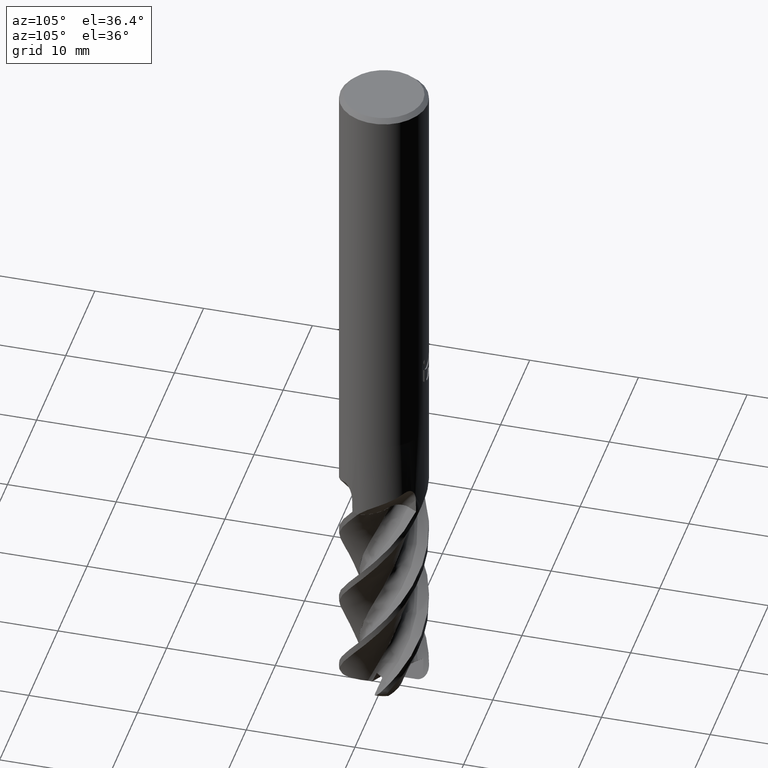
[diagram: clean part render]
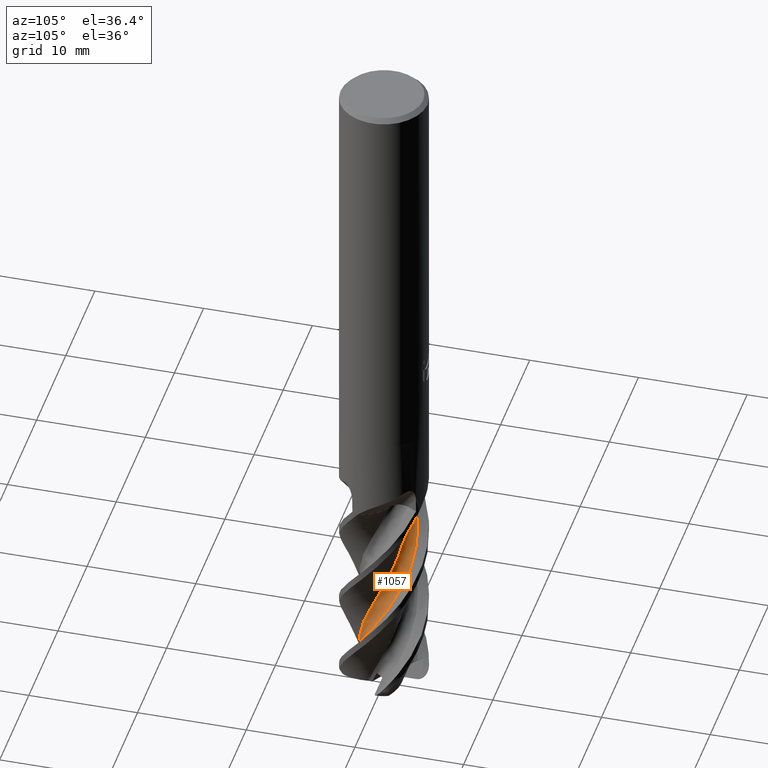
[diagram: same view with one face highlighted and labeled with its STEP entity id]
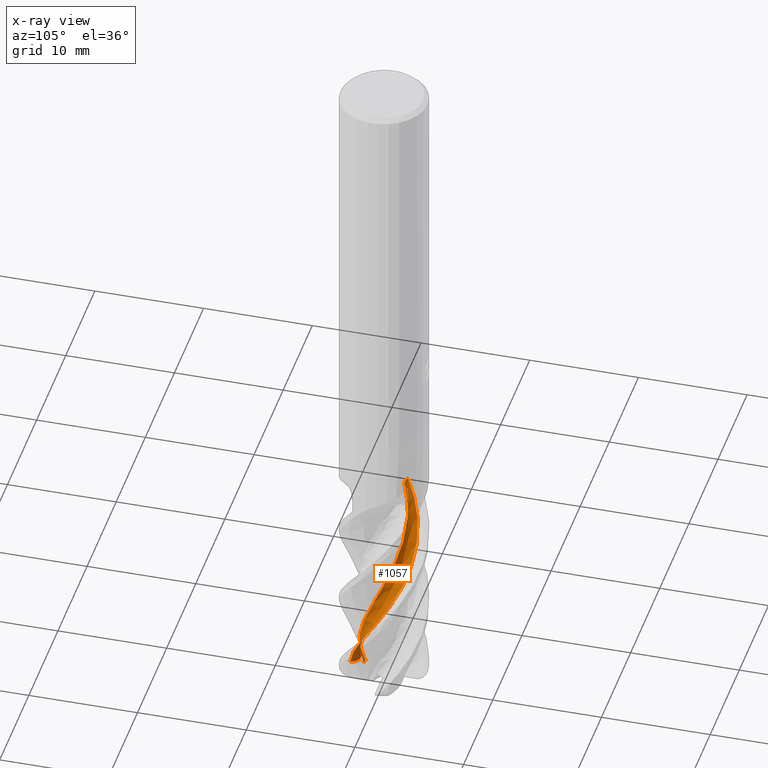
[diagram: x-ray of the same camera — body ghosted, the highlighted face saturated]
A machine part, auxiliary view. The second image highlights one B-rep face of the part: STEP entity #1057.
The next image is the same camera in x-ray: the body ghosted, the highlighted face saturated — about 0% of this face is hidden behind the body in this view.
In plain terms, the highlighted face is a freeform B-spline surface patch.
Its self-contained STEP definition (entity closure, byte-faithful):
#579=EDGE_CURVE('',#1109,#1033,#1619,.T.);
#607=VERTEX_POINT('',#1650);
#649=EDGE_CURVE('',#791,#1521,#1694,.T.);
#673=EDGE_CURVE('',#607,#1521,#1720,.T.);
#743=VERTEX_POINT('',#1797);
#791=VERTEX_POINT('',#1847);
#793=EDGE_CURVE('',#1109,#743,#1849,.T.);
#1023=EDGE_CURVE('',#743,#791,#2100,.T.);
#1033=VERTEX_POINT('',#2110);
#1057=ADVANCED_FACE('',(#2134),#2135,.T.);
#1109=VERTEX_POINT('',#2189);
#1297=EDGE_CURVE('',#607,#1033,#2403,.T.);
#1521=VERTEX_POINT('',#2646);
#1619=B_SPLINE_CURVE_WITH_KNOTS('',3,(#2838,#2839,#2840,#2841,#2842,#2843,#2844,#2845,#2846,#2847,#2848,#2849,#2850,#2851,#2852,#2853,#2854,#2855,#2856,#2857,#2858,#2859,#2860,#2861,#2862,#2863,#2864,#2865,#2866,#2867,#2868,#2869,#2870,#2871,#2872,#2873,#2874,#2875,#2876,#2877,#2878,#2879,#2880,#2881,#2882,#2883,#2884,#2885,#2886,#2887,#2888,#2889,#2890),.UNSPECIFIED.,.F.,.F.,(4,1,2,1,2,1,2,1,2,1,2,1,2,1,2,1,2,1,2,1,2,1,2,1,2,1,2,1,2,1,2,1,2,1,4),(0.0,0.564470682996319,1.12894136599264,1.69341204898896,2.25788273198528,3.38682409797792,4.51576546397055,5.64470682996319,6.77364819595583,7.90258956194847,9.03153092794111,10.1604722939337,11.2894136599264,12.418355025919,13.5472963919117,14.6762377579043,15.8051791238969,16.9341204898896,18.0630618558822,19.1920032218749,20.3209445878675,21.4498859538601,22.5788273198528,23.7077686858454,24.836710051838,25.9656514178307,27.0945927838233,28.223534149816,29.3524755158086,30.4814168818012,31.6103582477939,32.7392996137865,33.8682409797792,34.9971823457718,36.1261237117644),.UNSPECIFIED.);
#1650=CARTESIAN_POINT('',(-1.0589478404697,1.91326685878892,-44.0));
#1694=B_SPLINE_CURVE_WITH_KNOTS('',3,(#3112,#3113,#3114,#3115,#3116,#3117),.UNSPECIFIED.,.F.,.F.,(4,2,4),(0.0,0.437546709257603,0.855117557467047),.UNSPECIFIED.);
#1720=B_SPLINE_CURVE_WITH_KNOTS('',3,(#3187,#3188,#3189,#3190,#3191,#3192,#3193,#3194,#3195,#3196,#3197,#3198,#3199,#3200,#3201,#3202,#3203,#3204,#3205,#3206,#3207,#3208,#3209,#3210,#3211,#3212,#3213,#3214,#3215,#3216,#3217,#3218,#3219,#3220,#3221,#3222,#3223,#3224,#3225,#3226,#3227,#3228,#3229,#3230),.UNSPECIFIED.,.F.,.F.,(4,2,2,2,2,2,2,2,2,2,2,2,2,2,2,2,2,2,2,2,2,4),(0.0,1.09065750348526,1.16272854213342,3.30922259516204,3.5458628293968,5.68573179184916,5.82345131328246,7.88504758178701,8.01923989394566,10.0505077120194,10.2993625816689,11.6482152092207,12.7404102492723,14.2803593752693,14.5632393943545,16.028332744762,17.145102579144,17.9681777211153,18.5008184484494,18.744112255014,18.9577934838054,20.4277645305094),.UNSPECIFIED.);
#1797=CARTESIAN_POINT('',(-0.102892390691143,-2.07861533185208,-62.4418525692631));
#1847=CARTESIAN_POINT('',(-0.562098899506169,-2.00387310720187,-63.5258348171361));
#1849=B_SPLINE_CURVE_WITH_KNOTS('',3,(#4141,#4142,#4143,#4144,#4145,#4146,#4147,#4148,#4149,#4150,#4151,#4152),.UNSPECIFIED.,.F.,.F.,(4,2,2,2,2,4),(0.0,0.59279288955232,1.01802223723573,1.34997433243246,1.63469821265986,1.93631709778594),.UNSPECIFIED.);
#2100=B_SPLINE_CURVE_WITH_KNOTS('',3,(#6135,#6136,#6137,#6138,#6139,#6140,#6141,#6142,#6143,#6144,#6145,#6146),.UNSPECIFIED.,.F.,.F.,(4,2,2,2,2,4),(0.0,1.0137031243833,1.94022574832799,2.78597700295219,3.6046401147469,4.72783023559878),.UNSPECIFIED.);
#2110=CARTESIAN_POINT('',(-2.61301392435057,1.49564121686378,-44.0));
#2134=FACE_OUTER_BOUND('',#6223,.T.);
#2135=B_SPLINE_SURFACE_WITH_KNOTS('',3,3,((#6224,#6225,#6226,#6227,#6228,#6229,#6230,#6231,#6232,#6233,#6234,#6235,#6236,#6237,#6238,#6239,#6240,#6241,#6242,#6243,#6244,#6245,#6246,#6247,#6248,#6249,#6250,#6251,#6252,#6253,#6254,#6255,#6256,#6257,#6258,#6259,#6260,#6261,#6262,#6263,#6264,#6265,#6266,#6267,#6268,#6269,#6270,#6271,#6272,#6273,#6274,#6275,#6276),(#6277,#6278,#6279,#6280,#6281,#6282,#6283,#6284,#6285,#6286,#6287,#6288,#6289,#6290,#6291,#6292,#6293,#6294,#6295,#6296,#6297,#6298,#6299,#6300,#6301,#6302,#6303,#6304,#6305,#6306,#6307,#6308,#6309,#6310,#6311,#6312,#6313,#6314,#6315,#6316,#6317,#6318,#6319,#6320,#6321,#6322,#6323,#6324,#6325,#6326,#6327,#6328,#6329),(#6330,#6331,#6332,#6333,#6334,#6335,#6336,#6337,#6338,#6339,#6340,#6341,#6342,#6343,#6344,#6345,#6346,#6347,#6348,#6349,#6350,#6351,#6352,#6353,#6354,#6355,#6356,#6357,#6358,#6359,#6360,#6361,#6362,#6363,#6364,#6365,#6366,#6367,#6368,#6369,#6370,#6371,#6372,#6373,#6374,#6375,#6376,#6377,#6378,#6379,#6380,#6381,#6382),(#6383,#6384,#6385,#6386,#6387,#6388,#6389,#6390,#6391,#6392,#6393,#6394,#6395,#6396,#6397,#6398,#6399,#6400,#6401,#6402,#6403,#6404,#6405,#6406,#6407,#6408,#6409,#6410,#6411,#6412,#6413,#6414,#6415,#6416,#6417,#6418,#6419,#6420,#6421,#6422,#6423,#6424,#6425,#6426,#6427,#6428,#6429,#6430,#6431,#6432,#6433,#6434,#6435),(#6436,#6437,#6438,#6439,#6440,#6441,#6442,#6443,#6444,#6445,#6446,#6447,#6448,#6449,#6450,#6451,#6452,#6453,#6454,#6455,#6456,#6457,#6458,#6459,#6460,#6461,#6462,#6463,#6464,#6465,#6466,#6467,#6468,#6469,#6470,#6471,#6472,#6473,#6474,#6475,#6476,#6477,#6478,#6479,#6480,#6481,#6482,#6483,#6484,#6485,#6486,#6487,#6488),(#6489,#6490,#6491,#6492,#6493,#6494,#6495,#6496,#6497,#6498,#6499,#6500,#6501,#6502,#6503,#6504,#6505,#6506,#6507,#6508,#6509,#6510,#6511,#6512,#6513,#6514,#6515,#6516,#6517,#6518,#6519,#6520,#6521,#6522,#6523,#6524,#6525,#6526,#6527,#6528,#6529,#6530,#6531,#6532,#6533,#6534,#6535,#6536,#6537,#6538,#6539,#6540,#6541),(#6542,#6543,#6544,#6545,#6546,#6547,#6548,#6549,#6550,#6551,#6552,#6553,#6554,#6555,#6556,#6557,#6558,#6559,#6560,#6561,#6562,#6563,#6564,#6565,#6566,#6567,#6568,#6569,#6570,#6571,#6572,#6573,#6574,#6575,#6576,#6577,#6578,#6579,#6580,#6581,#6582,#6583,#6584,#6585,#6586,#6587,#6588,#6589,#6590,#6591,#6592,#6593,#6594)),.UNSPECIFIED.,.F.,.F.,.F.,(4,1,1,1,4),(4,1,2,1,2,1,2,1,2,1,2,1,2,1,2,1,2,1,2,1,2,1,2,1,2,1,2,1,2,1,2,1,2,1,4),(3.86164530321994E-016,0.392699081655247,0.785398163310493,1.17809724496574,1.57079632662099),(0.0,0.564470682996319,1.12894136599264,1.69341204898896,2.25788273198528,3.38682409797792,4.51576546397055,5.64470682996319,6.77364819595583,7.90258956194847,9.03153092794111,10.1604722939337,11.2894136599264,12.418355025919,13.5472963919117,14.6762377579043,15.8051791238969,16.9341204898896,18.0630618558822,19.1920032218749,20.3209445878675,21.4498859538601,22.5788273198528,23.7077686858454,24.836710051838,25.9656514178307,27.0945927838233,28.223534149816,29.3524755158086,30.4814168818012,31.6103582477939,32.7392996137865,33.8682409797792,34.9971823457718,36.1261237117644),.UNSPECIFIED.);
#2189=CARTESIAN_POINT('',(0.87639897342754,-2.88035096255756,-62.5811954262058));
#2403=B_SPLINE_CURVE_WITH_KNOTS('',3,(#8511,#8512,#8513,#8514,#8515,#8516,#8517,#8518,#8519,#8520),.UNSPECIFIED.,.F.,.F.,(4,2,2,2,4),(0.0,0.449312264804202,0.898616665085287,1.3478876222849,1.79650165292875),.UNSPECIFIED.);
#2646=CARTESIAN_POINT('',(-0.956388948085553,-1.96667088766999,-63.5379225510015));
#2838=CARTESIAN_POINT('',(-3.00677203606764,0.139362559970866,-72.0));
#2839=CARTESIAN_POINT('',(-3.00774969477143,0.137591686624967,-71.8125082595747));
#2840=CARTESIAN_POINT('',(-3.01441433494852,0.0600543438687208,-71.4374591624002));
#2841=CARTESIAN_POINT('',(-3.01061532222955,-0.171607700085384,-71.0623911956232));
#2842=CARTESIAN_POINT('',(-2.97647397913281,-0.47628938617783,-70.6874423173603));
#2843=CARTESIAN_POINT('',(-2.92282848590813,-0.754067282596545,-70.3125146345509));
#2844=CARTESIAN_POINT('',(-2.84756256579909,-0.983283104512657,-69.9375423205399));
#2845=CARTESIAN_POINT('',(-2.72581288907504,-1.29858759576882,-69.3750028006817));
#2846=CARTESIAN_POINT('',(-2.51736149798706,-1.69929144152949,-68.624949962598));
#2847=CARTESIAN_POINT('',(-2.20979311263245,-2.05974680242893,-67.874919047866));
#2848=CARTESIAN_POINT('',(-1.84676941797744,-2.39034067304375,-67.1249515254754));
#2849=CARTESIAN_POINT('',(-1.45876887986611,-2.6645478128411,-66.3749923887698));
#2850=CARTESIAN_POINT('',(-1.02262727707591,-2.84205168758233,-65.6249831733259));
#2851=CARTESIAN_POINT('',(-0.556457428820898,-2.96866560096543,-64.8749710741685));
#2852=CARTESIAN_POINT('',(-0.0896044363825028,-3.03643934645835,-64.1249749237994));
#2853=CARTESIAN_POINT('',(0.380796477758881,-2.99637072434763,-63.3749614765675));
#2854=CARTESIAN_POINT('',(0.854244927620434,-2.89707269477737,-62.624964438419));
#2855=CARTESIAN_POINT('',(1.30066399316098,-2.74516440351388,-61.8749788883283));
#2856=CARTESIAN_POINT('',(1.70115865604854,-2.49587598860677,-61.1249657028013));
#2857=CARTESIAN_POINT('',(2.07794287669122,-2.19202455294531,-60.3749646718826));
#2858=CARTESIAN_POINT('',(2.40673291691619,-1.85349343938976,-59.6249767812222));
#2859=CARTESIAN_POINT('',(2.65006574239382,-1.44928267200602,-58.8749638295968));
#2860=CARTESIAN_POINT('',(2.84738920080401,-1.00754765934755,-58.1249636008392));
#2861=CARTESIAN_POINT('',(2.98627089438864,-0.556723585036126,-57.3749760013815));
#2862=CARTESIAN_POINT('',(3.01925370039235,-0.0860681690051008,-56.6249628871072));
#2863=CARTESIAN_POINT('',(2.99416580572525,0.397198679317561,-55.8749625969308));
#2864=CARTESIAN_POINT('',(2.91286947324332,0.861951866435291,-55.1249750587671));
#2865=CARTESIAN_POINT('',(2.72824452373256,1.29613710633168,-54.3749619960785));
#2866=CARTESIAN_POINT('',(2.48618642975126,1.71512919239107,-53.6249616400313));
#2867=CARTESIAN_POINT('',(2.20248501471941,2.0920853978149,-52.8749740629167));
#2868=CARTESIAN_POINT('',(1.84065663274366,2.39484273687551,-52.124961038494));
#2869=CARTESIAN_POINT('',(1.43459136619598,2.65795697902784,-51.3749607503364));
#2870=CARTESIAN_POINT('',(1.01053593405324,2.86471403574204,-50.6249731383908));
#2871=CARTESIAN_POINT('',(0.550574624127416,2.96987629804413,-49.8749600205708));
#2872=CARTESIAN_POINT('',(0.0692067828817185,3.0196036450903,-49.1249596981876));
#2873=CARTESIAN_POINT('',(-0.402523223658641,3.01093589661149,-48.3749721770522));
#2874=CARTESIAN_POINT('',(-0.859950191814616,2.89547384263325,-47.6249591458725));
#2875=CARTESIAN_POINT('',(-1.31121108144683,2.72093917606784,-46.8749587794507));
#2876=CARTESIAN_POINT('',(-1.72739774133227,2.49877412627835,-46.1249711597046));
#2877=CARTESIAN_POINT('',(-2.08236869740685,2.18793024471843,-45.3749582021516));
#2878=CARTESIAN_POINT('',(-2.40499132920278,1.82724204084278,-44.6249581061917));
#2879=CARTESIAN_POINT('',(-2.67465440957888,1.44012857761571,-43.8749704703395));
#2880=CARTESIAN_POINT('',(-2.84946637563302,1.00191877655943,-43.1249567892993));
#2881=CARTESIAN_POINT('',(-2.97282076010391,0.533981199357519,-42.3749556801833));
#2882=CARTESIAN_POINT('',(-3.0369952649953,0.0665029707277234,-41.6249686192193));
#2883=CARTESIAN_POINT('',(-2.99344661982813,-0.403082595917741,-40.8749577711076));
#2884=CARTESIAN_POINT('',(-2.89072308043096,-0.875446373624069,-40.1249596964065));
#2885=CARTESIAN_POINT('',(-2.73560031078932,-1.32081121117291,-39.3749697431896));
#2886=CARTESIAN_POINT('',(-2.48251052525601,-1.72072857361434,-38.6249508035516));
#2887=CARTESIAN_POINT('',(-2.17406025606992,-2.09686134508152,-37.87494675259));
#2888=CARTESIAN_POINT('',(-1.83247644184762,-2.42237467324165,-37.1249683855231));
#2889=CARTESIAN_POINT('',(-1.43241934825352,-2.65887351166689,-36.3749707445256));
#2890=CARTESIAN_POINT('',(-1.21579401568708,-2.75440643687684,-35.9999741297015));
#3112=CARTESIAN_POINT('',(-0.160772001908427,-2.18284568967491,-63.467683100005));
#3113=CARTESIAN_POINT('',(-0.281818720642911,-2.10546688510757,-63.4928249976798));
#3114=CARTESIAN_POINT('',(-0.414647692797881,-2.0440852711256,-63.5127690930467));
#3115=CARTESIAN_POINT('',(-0.688042693760329,-1.96948085008728,-63.5370095388681));
#3116=CARTESIAN_POINT('',(-0.827238938812816,-1.95445219929354,-63.5418926435212));
#3117=CARTESIAN_POINT('',(-0.965083277507148,-1.96745355359445,-63.5376682474312));
#3187=CARTESIAN_POINT('',(-1.05894800815942,1.91326676616172,-43.9999995780196));
#3188=CARTESIAN_POINT('',(-0.927398356969975,1.98593118436131,-44.3310358187858));
#3189=CARTESIAN_POINT('',(-0.787060778514073,2.04572547908128,-44.6642002760684));
#3190=CARTESIAN_POINT('',(-0.629875406243276,2.09404906919753,-45.0154276834707));
#3191=CARTESIAN_POINT('',(-0.620003213949589,2.09701196496892,-45.0374493329349));
#3192=CARTESIAN_POINT('',(-0.302132072596894,2.18975994393198,-45.7466007884963));
#3193=CARTESIAN_POINT('',(0.0190551194935727,2.20935996187752,-46.4572163211512));
#3194=CARTESIAN_POINT('',(0.368700626734486,2.15564783192668,-47.2169242707717));
#3195=CARTESIAN_POINT('',(0.40315999836468,2.14953609241468,-47.2914231031089));
#3196=CARTESIAN_POINT('',(0.753281151452618,2.0783948773956,-48.0588518536113));
#3197=CARTESIAN_POINT('',(1.04872826216445,1.94514723371506,-48.7747455876045));
#3198=CARTESIAN_POINT('',(1.32373763825414,1.74062943625669,-49.5079147982847));
#3199=CARTESIAN_POINT('',(1.34002169658593,1.7281744869915,-49.5516452090107));
#3200=CARTESIAN_POINT('',(1.60898591823878,1.51591607687378,-50.2867739949448));
#3201=CARTESIAN_POINT('',(1.81210298401168,1.26452137929621,-51.0006202470246));
#3202=CARTESIAN_POINT('',(1.96518699603821,0.959197603795531,-51.7323854306801));
#3203=CARTESIAN_POINT('',(1.97426347393851,0.940457994291448,-51.7767653529917));
#3204=CARTESIAN_POINT('',(2.11868757083125,0.630619922139913,-52.5093904066219));
#3205=CARTESIAN_POINT('',(2.18687264851782,0.315617057185351,-53.2212214235478));
#3206=CARTESIAN_POINT('',(2.18660976825171,-0.042879562943246,-53.9904818643296));
#3207=CARTESIAN_POINT('',(2.18559795688315,-0.0813777873992399,-54.0724600101303));
#3208=CARTESIAN_POINT('',(2.17161910061791,-0.338065921514429,-54.6256531551824));
#3209=CARTESIAN_POINT('',(2.12739117328549,-0.549347944447972,-55.1009099809436));
#3210=CARTESIAN_POINT('',(1.99482689051371,-0.911803891889921,-55.9471670661455));
#3211=CARTESIAN_POINT('',(1.91668658961275,-1.06716589708812,-56.3134358857601));
#3212=CARTESIAN_POINT('',(1.68409900659559,-1.41673984074917,-57.2273884274984));
#3213=CARTESIAN_POINT('',(1.51410307318782,-1.59666983716616,-57.773791915904));
#3214=CARTESIAN_POINT('',(1.28042041124295,-1.77311795086871,-58.4052443524577));
#3215=CARTESIAN_POINT('',(1.24402597630655,-1.7989087100128,-58.5002421312138));
#3216=CARTESIAN_POINT('',(1.01260032945689,-1.95243253792045,-59.0962048893736));
#3217=CARTESIAN_POINT('',(0.801532528411305,-2.04736156006883,-59.6056574711117));
#3218=CARTESIAN_POINT('',(0.413613234361267,-2.15408914645834,-60.4869348281682));
#3219=CARTESIAN_POINT('',(0.240309994754511,-2.18071636258984,-60.8556051314117));
#3220=CARTESIAN_POINT('',(-0.06508959669755,-2.18983062692526,-61.5217076658549));
#3221=CARTESIAN_POINT('',(-0.194076143443223,-2.18201435021444,-61.8063080088233));
#3222=CARTESIAN_POINT('',(-0.403438311344061,-2.15073440262116,-62.2724172590761));
#3223=CARTESIAN_POINT('',(-0.485366312252755,-2.13369741527397,-62.4558510559936));
#3224=CARTESIAN_POINT('',(-0.603699754831308,-2.10193692122474,-62.7220265197143));
#3225=CARTESIAN_POINT('',(-0.640705776601539,-2.09097129336718,-62.8054464193703));
#3226=CARTESIAN_POINT('',(-0.709960998810091,-2.06846400767226,-62.9619022308218));
#3227=CARTESIAN_POINT('',(-0.741871924378912,-2.05729622618453,-63.0338977959123));
#3228=CARTESIAN_POINT('',(-0.995115178744132,-1.96180084568582,-63.6150194914645));
#3229=CARTESIAN_POINT('',(-1.19844003365927,-1.84377938006882,-64.1322997991804));
#3230=CARTESIAN_POINT('',(-1.37844698052743,-1.69744157972605,-64.6402267638566));
#4141=CARTESIAN_POINT('',(0.876398973423365,-2.88035096255639,-62.5811954262137));
#4142=CARTESIAN_POINT('',(0.787517803448362,-2.7126861785214,-62.6362724735295));
#4143=CARTESIAN_POINT('',(0.678206164543847,-2.55822980648186,-62.6670798099592));
#4144=CARTESIAN_POINT('',(0.467845698096282,-2.33790195100292,-62.6714796765284));
#4145=CARTESIAN_POINT('',(0.369501060831689,-2.25551345654742,-62.6588241842224));
#4146=CARTESIAN_POINT('',(0.181353958299473,-2.1445619386424,-62.6013072176765));
#4147=CARTESIAN_POINT('',(0.0965825891215242,-2.10949751216055,-62.5647407371331));
#4148=CARTESIAN_POINT('',(-0.0599975687462056,-2.07648177883037,-62.4745400793249));
#4149=CARTESIAN_POINT('',(-0.129022011432162,-2.07459729168426,-62.4257357395327));
#4150=CARTESIAN_POINT('',(-0.261118176686254,-2.09709860914908,-62.3137043234483));
#4151=CARTESIAN_POINT('',(-0.321427528391127,-2.12265932287767,-62.2516457600211));
#4152=CARTESIAN_POINT('',(-0.373433393422908,-2.15902976772508,-62.1879057310969));
#6135=CARTESIAN_POINT('',(0.948090306987966,-1.86386286213521,-60.2925698314325));
#6136=CARTESIAN_POINT('',(0.789819080490329,-1.93561697204324,-60.5823605842089));
#6137=CARTESIAN_POINT('',(0.63861270462207,-1.98814263959702,-60.8729902023132));
#6138=CARTESIAN_POINT('',(0.347851119631488,-2.05661381186564,-61.4598180356079));
#6139=CARTESIAN_POINT('',(0.212641067742437,-2.07431650842428,-61.7448567962971));
#6140=CARTESIAN_POINT('',(-0.0374272645046556,-2.08424210513885,-62.2916407615195));
#6141=CARTESIAN_POINT('',(-0.153809816307661,-2.0785857912041,-62.5549479632567));
#6142=CARTESIAN_POINT('',(-0.376174718875189,-2.04987807653543,-63.0734187443504));
#6143=CARTESIAN_POINT('',(-0.482764757099062,-2.0273898102668,-63.3294477555588));
#6144=CARTESIAN_POINT('',(-0.729353489239857,-1.95480924667208,-63.9394213957076));
#6145=CARTESIAN_POINT('',(-0.867231885286099,-1.89749771499003,-64.2948627370636));
#6146=CARTESIAN_POINT('',(-0.998219551392315,-1.8258272890442,-64.6473440744404));
#6223=EDGE_LOOP('',(#11696,#11697,#11698,#11699,#11700,#11701));
#6224=CARTESIAN_POINT('',(-1.80476047958255,1.23488445277643,-72.0));
#6225=CARTESIAN_POINT('',(-1.81137538770854,1.23929877790694,-71.8125313510442));
#6226=CARTESIAN_POINT('',(-1.85276634831492,1.20059591942823,-71.437202065122));
#6227=CARTESIAN_POINT('',(-1.93995363648367,1.05524968127295,-71.0617783824759));
#6228=CARTESIAN_POINT('',(-2.03232533301782,0.85038773732661,-70.6871292461185));
#6229=CARTESIAN_POINT('',(-2.1033655376501,0.655890231212821,-70.3126092111627));
#6230=CARTESIAN_POINT('',(-2.14464353608541,0.484592325600987,-69.937786196636));
#6231=CARTESIAN_POINT('',(-2.19149047028618,0.242354191421227,-69.3750202091758));
#6232=CARTESIAN_POINT('',(-2.21784615557026,-0.0863451153469553,-68.6246724010225));
#6233=CARTESIAN_POINT('',(-2.16568393801588,-0.428645511467627,-67.8744748534411));
#6234=CARTESIAN_POINT('',(-2.06634073087692,-0.773486831519215,-67.1246931901365));
#6235=CARTESIAN_POINT('',(-1.93107083759106,-1.09300975953626,-66.37496472818));
#6236=CARTESIAN_POINT('',(-1.72892293982744,-1.37130442659262,-65.6249045444082));
#6237=CARTESIAN_POINT('',(-1.48770831548932,-1.62899630091687,-64.8748259069913));
#6238=CARTESIAN_POINT('',(-1.2241950226177,-1.85091908222604,-64.1248529870953));
#6239=CARTESIAN_POINT('',(-0.916821371308844,-2.00734155215381,-63.3747664309908));
#6240=CARTESIAN_POINT('',(-0.584315585502796,-2.12731597028668,-62.6247879174692));
#6241=CARTESIAN_POINT('',(-0.248844446308316,-2.20508549747824,-61.8748849998447));
#6242=CARTESIAN_POINT('',(0.0957737822550588,-2.2047593923353,-61.1247997593736));
#6243=CARTESIAN_POINT('',(0.446685059966668,-2.16042768616146,-60.374794700042));
#6244=CARTESIAN_POINT('',(0.781088680037319,-2.0770786283832,-59.6248763204544));
#6245=CARTESIAN_POINT('',(1.08789066198077,-1.92003085771153,-58.8747927321212));
#6246=CARTESIAN_POINT('',(1.3801346831887,-1.72109512592069,-58.1247930206773));
#6247=CARTESIAN_POINT('',(1.63999062949461,-1.49492470222575,-57.3748765692616));
#6248=CARTESIAN_POINT('',(1.84186809377274,-1.2155658570136,-56.6247918790457));
#6249=CARTESIAN_POINT('',(2.01175101214848,-0.905434820049371,-55.8747917464138));
#6250=CARTESIAN_POINT('',(2.14037627846402,-0.585788752938109,-55.1248756963389));
#6251=CARTESIAN_POINT('',(2.1931572724205,-0.24518752623193,-54.3747913542547));
#6252=CARTESIAN_POINT('',(2.20345770786851,0.108251652994802,-53.6247907931217));
#6253=CARTESIAN_POINT('',(2.17268967474516,0.451412622431372,-52.8748744894893));
#6254=CARTESIAN_POINT('',(2.06484854516294,0.778756056079364,-52.1247903969579));
#6255=CARTESIAN_POINT('',(1.91334124451689,1.09821735465057,-51.3747902766124));
#6256=CARTESIAN_POINT('',(1.7299265098306,1.38986667795074,-50.6248737328341));
#6257=CARTESIAN_POINT('',(1.48502392721574,1.63241335131195,-49.8747890278044));
#6258=CARTESIAN_POINT('',(1.20478804363266,1.84808804548624,-49.1247887029881));
#6259=CARTESIAN_POINT('',(0.908796079238007,2.02445866240176,-48.3748727968696));
#6260=CARTESIAN_POINT('',(0.58043115640169,2.12911981455356,-47.6247886526699));
#6261=CARTESIAN_POINT('',(0.232844328847023,2.19379518864128,-46.8747879593675));
#6262=CARTESIAN_POINT('',(-0.11094560521549,2.21631878231945,-46.1248712578882));
#6263=CARTESIAN_POINT('',(-0.451039345676978,2.1602388090297,-45.374787638218));
#6264=CARTESIAN_POINT('',(-0.790086525642835,2.05978388982569,-44.6247890187961));
#6265=CARTESIAN_POINT('',(-1.10652802899039,1.92352428197467,-43.8748727537085));
#6266=CARTESIAN_POINT('',(-1.38391425134454,1.71896761712249,-43.1247842146205));
#6267=CARTESIAN_POINT('',(-1.64021609317765,1.4753407666171,-42.374777823755));
#6268=CARTESIAN_POINT('',(-1.86013433690686,1.21004670003035,-41.6248633144244));
#6269=CARTESIAN_POINT('',(-2.01411703687621,0.901863454888765,-40.8747939152713));
#6270=CARTESIAN_POINT('',(-2.13157262212943,0.568732353913345,-40.1248114322555));
#6271=CARTESIAN_POINT('',(-2.20694908905397,0.232674294403331,-39.3748851912524));
#6272=CARTESIAN_POINT('',(-2.20394164565691,-0.11307295159166,-38.6247611432285));
#6273=CARTESIAN_POINT('',(-2.1563392741405,-0.465348532524491,-37.8747258792699));
#6274=CARTESIAN_POINT('',(-2.0698231994057,-0.798870454616608,-37.1248505805054));
#6275=CARTESIAN_POINT('',(-1.91315882645028,-1.09994994078505,-36.3748297897704));
#6276=CARTESIAN_POINT('',(-1.81542020401562,-1.24263647657492,-35.999829425378));
#6277=CARTESIAN_POINT('',(-1.81173773043437,1.0845115888996,-72.0));
#6278=CARTESIAN_POINT('',(-1.81757886324538,1.08889001210914,-71.8125281461394));
#6279=CARTESIAN_POINT('',(-1.85415529360278,1.0499180328106,-71.4372377482878));
#6280=CARTESIAN_POINT('',(-1.92973816186552,0.904876912857657,-71.0618634353168));
#6281=CARTESIAN_POINT('',(-2.00729633268292,0.701761289436678,-70.6871726982257));
#6282=CARTESIAN_POINT('',(-2.064725056376,0.509973068733755,-70.312596084512));
#6283=CARTESIAN_POINT('',(-2.09458435839172,0.342511659372254,-69.9377523486598));
#6284=CARTESIAN_POINT('',(-2.12561418171109,0.106525172513315,-69.3750177930838));
#6285=CARTESIAN_POINT('',(-2.13188855595556,-0.21151973627258,-68.6247109220173));
#6286=CARTESIAN_POINT('',(-2.06182102766693,-0.538292963201666,-67.8745365082457));
#6287=CARTESIAN_POINT('',(-1.94615156178184,-0.864944767753201,-67.1247290405421));
#6288=CARTESIAN_POINT('',(-1.79730541797591,-1.16496128125123,-66.3749685707381));
#6289=CARTESIAN_POINT('',(-1.58643831522738,-1.42134479201694,-65.6249154547973));
#6290=CARTESIAN_POINT('',(-1.33907827465828,-1.65573465315489,-64.8748460576128));
#6291=CARTESIAN_POINT('',(-1.07234429032062,-1.85426001309959,-64.1248699091851));
#6292=CARTESIAN_POINT('',(-0.767159664390176,-1.98715195565483,-63.3747935024246));
#6293=CARTESIAN_POINT('',(-0.439779374425623,-2.08355008799539,-62.6248124163382));
#6294=CARTESIAN_POINT('',(-0.112077971206883,-2.13902532858722,-61.8748980270016));
#6295=CARTESIAN_POINT('',(0.219903813336948,-2.11874694134253,-61.1248227992207));
#6296=CARTESIAN_POINT('',(0.555523877249829,-2.05573556353942,-60.3748182824028));
#6297=CARTESIAN_POINT('',(0.872859283681618,-1.95605143372277,-59.6248902681605));
#6298=CARTESIAN_POINT('',(1.1593310323368,-1.78697991437332,-58.8748164781102));
#6299=CARTESIAN_POINT('',(1.42947183404444,-1.57836443643919,-58.1248166966646));
#6300=CARTESIAN_POINT('',(1.66670682053505,-1.3454070813618,-57.374890370245));
#6301=CARTESIAN_POINT('',(1.84500989963492,-1.06458085721804,-56.6248156113404));
#6302=CARTESIAN_POINT('',(1.99080022353833,-0.755877711710563,-55.874815461208));
#6303=CARTESIAN_POINT('',(2.09618870393582,-0.440472579940593,-55.1248894963054));
#6304=CARTESIAN_POINT('',(2.12730598438699,-0.109283396593175,-54.3748150171299));
#6305=CARTESIAN_POINT('',(2.11679855453203,0.23193042708113,-53.6248145259986));
#6306=CARTESIAN_POINT('',(2.06726346069627,0.560749775396533,-52.874888296132));
#6307=CARTESIAN_POINT('',(1.94440714661164,0.869861375924339,-52.1248140864172));
#6308=CARTESIAN_POINT('',(1.77992595863525,1.16897463829025,-51.3748139310708));
#6309=CARTESIAN_POINT('',(1.58631644453864,1.43931838938125,-50.6248875323303));
#6310=CARTESIAN_POINT('',(1.33632893844216,1.65879796499674,-49.8748127603266));
#6311=CARTESIAN_POINT('',(1.05378902583676,1.8504474929807,-49.1248124355103));
#6312=CARTESIAN_POINT('',(0.758404585357245,2.00320531695552,-48.3748865875021));
#6313=CARTESIAN_POINT('',(0.435998459175679,2.08501205167285,-47.6248123208752));
#6314=CARTESIAN_POINT('',(0.0972813192611403,2.12724526854113,-46.8748116625736));
#6315=CARTESIAN_POINT('',(-0.235233174642396,2.12901511181118,-46.1248851334898));
#6316=CARTESIAN_POINT('',(-0.559627247924327,2.0552863811035,-45.3748112960891));
#6317=CARTESIAN_POINT('',(-0.880568014578456,1.93887331469111,-44.6248125016628));
#6318=CARTESIAN_POINT('',(-1.17753019885587,1.78925602523709,-43.874886308962));
#6319=CARTESIAN_POINT('',(-1.43291081737768,1.57611916805219,-43.1248081655535));
#6320=CARTESIAN_POINT('',(-1.66583046615256,1.32651143748955,-42.3748025097065));
#6321=CARTESIAN_POINT('',(-1.86232253535212,1.05817667956237,-41.624877927839));
#6322=CARTESIAN_POINT('',(-1.99281296370399,0.752356900383763,-40.8748166601108));
#6323=CARTESIAN_POINT('',(-2.08674483676623,0.424522554958476,-40.1248320070404));
#6324=CARTESIAN_POINT('',(-2.13988065625694,0.0963954105565925,-39.3748969473734));
#6325=CARTESIAN_POINT('',(-2.11695929377079,-0.236530403102709,-38.6247874274736));
#6326=CARTESIAN_POINT('',(-2.0507222440204,-0.573295911740435,-37.8747565736259));
#6327=CARTESIAN_POINT('',(-1.94803532401288,-0.889600338617262,-37.1248669136513));
#6328=CARTESIAN_POINT('',(-1.77966672118137,-1.17052359486462,-36.3748493484992));
#6329=CARTESIAN_POINT('',(-1.67723263490804,-1.30234305544802,-35.9998495091201));
#6330=CARTESIAN_POINT('',(-1.88548678834961,0.786603781588498,-72.0));
#6331=CARTESIAN_POINT('',(-1.88979497292009,0.790602715553383,-71.812521810229));
#6332=CARTESIAN_POINT('',(-1.91685138949405,0.749178055809945,-71.4373082911845));
#6333=CARTESIAN_POINT('',(-1.96910898139652,0.600132408521799,-71.0620315818022));
#6334=CARTESIAN_POINT('',(-2.01635188845187,0.394617926236078,-70.6872585991134));
#6335=CARTESIAN_POINT('',(-2.04548599883781,0.202834371822109,-70.31257013434));
#6336=CARTESIAN_POINT('',(-2.05098710256199,0.0385035654533925,-69.9376854336029));
#6337=CARTESIAN_POINT('',(-2.04790330683492,-0.191272119942919,-69.3750130154545));
#6338=CARTESIAN_POINT('',(-2.00978668901324,-0.495998277178675,-68.6247870840123));
#6339=CARTESIAN_POINT('',(-1.89774153320397,-0.798843970031262,-67.8746583815099));
#6340=CARTESIAN_POINT('',(-1.74219313645238,-1.09561671767378,-67.1247999298312));
#6341=CARTESIAN_POINT('',(-1.55844327280814,-1.36202737723677,-66.3749761543155));
#6342=CARTESIAN_POINT('',(-1.32142820605848,-1.57806508802442,-65.6249370349945));
#6343=CARTESIAN_POINT('',(-1.05251360781919,-1.76830454171312,-64.8748858833669));
#6344=CARTESIAN_POINT('',(-0.770035342831013,-1.92132565766817,-64.1249033677704));
#6345=CARTESIAN_POINT('',(-0.459870665816382,-2.00629595179843,-63.3748470230902));
#6346=CARTESIAN_POINT('',(-0.133363821566826,-2.05351325210178,-62.6248608473851));
#6347=CARTESIAN_POINT('',(0.187666957162616,-2.06131956973314,-61.8749237978826));
#6348=CARTESIAN_POINT('',(0.502315428965111,-1.99611999636246,-61.1248683158709));
#6349=CARTESIAN_POINT('',(0.814787695884351,-1.88967642256588,-60.374864935349));
#6350=CARTESIAN_POINT('',(1.10448968204163,-1.75054165400988,-59.6249178261308));
#6351=CARTESIAN_POINT('',(1.35509093274108,-1.54934314958826,-58.8748634225567));
#6352=CARTESIAN_POINT('',(1.58488383756109,-1.31258266172677,-58.1248635029118));
#6353=CARTESIAN_POINT('',(1.77958535624604,-1.05705881627289,-57.3749176498393));
#6354=CARTESIAN_POINT('',(1.9113331047932,-0.763923824334693,-56.6248625371245));
#6355=CARTESIAN_POINT('',(2.00838057377904,-0.448495169076653,-55.8748623357674));
#6356=CARTESIAN_POINT('',(2.06561880851664,-0.132329746409102,-55.1249167437557));
#6357=CARTESIAN_POINT('',(2.04967498433965,0.188654147761138,-54.3748618743277));
#6358=CARTESIAN_POINT('',(1.99269903059745,0.513696882814218,-53.6248613676749));
#6359=CARTESIAN_POINT('',(1.8999346095801,0.821301975496296,-52.87491563733));
#6360=CARTESIAN_POINT('',(1.73980416155593,1.09992854880344,-52.1248609037356));
#6361=CARTESIAN_POINT('',(1.54128902092023,1.3635135215438,-51.3748607101528));
#6362=CARTESIAN_POINT('',(1.31882184595539,1.59530917161416,-50.6249148013324));
#6363=CARTESIAN_POINT('',(1.049493734795,1.7706863551172,-49.8748596864876));
#6364=CARTESIAN_POINT('',(0.752792852273047,1.91521188082906,-49.1248593452003));
#6365=CARTESIAN_POINT('',(0.449233304753082,2.02051248662911,-48.3749138645334));
#6366=CARTESIAN_POINT('',(0.129653941482491,2.05425042041196,-47.6248590924295));
#6367=CARTESIAN_POINT('',(-0.200251941623849,2.04808164987747,-46.8748585417379));
#6368=CARTESIAN_POINT('',(-0.518473269513183,2.00386891683288,-46.1249125287922));
#6369=CARTESIAN_POINT('',(-0.818492855103636,1.88860696193595,-45.374858119277));
#6370=CARTESIAN_POINT('',(-1.10957435876601,1.73308408929175,-44.6248588731935));
#6371=CARTESIAN_POINT('',(-1.37289794521838,1.54901089439888,-43.874913131827));
#6372=CARTESIAN_POINT('',(-1.58768864131713,1.30996648617729,-43.1248555183748));
#6373=CARTESIAN_POINT('',(-1.77623211170659,1.0391013130666,-42.3748513093877));
#6374=CARTESIAN_POINT('',(-1.92709086903822,0.755370769711571,-41.6249068255993));
#6375=CARTESIAN_POINT('',(-2.00966678815679,0.444934952268614,-40.8748616128924));
#6376=CARTESIAN_POINT('',(-2.05445482960355,0.118337415654483,-40.1248726948192));
#6377=CARTESIAN_POINT('',(-2.05996490037716,-0.202775487840743,-39.3749201121358));
#6378=CARTESIAN_POINT('',(-1.99212550254465,-0.517982840864085,-38.6248395303583));
#6379=CARTESIAN_POINT('',(-1.88245918151848,-0.83114502455071,-37.8748171144018));
#6380=CARTESIAN_POINT('',(-1.7405906504743,-1.11945223384039,-37.1248992575416));
#6381=CARTESIAN_POINT('',(-1.54080316168487,-1.36472585771231,-36.3748880470725));
#6382=CARTESIAN_POINT('',(-1.42465870729509,-1.47668293818915,-35.9998892135915));
#6383=CARTESIAN_POINT('',(-2.15871202503002,0.416058765089804,-72.0));
#6384=CARTESIAN_POINT('',(-2.16111348934166,0.418651763196833,-71.8125139700112));
#6385=CARTESIAN_POINT('',(-2.17638375267717,0.368362889828902,-71.437395582745));
#6386=CARTESIAN_POINT('',(-2.19861286673618,0.200377352447949,-71.0622396485985));
#6387=CARTESIAN_POINT('',(-2.20521785675478,-0.0258642538490346,-70.6873648953445));
#6388=CARTESIAN_POINT('',(-2.19513480640857,-0.233883846893494,-70.3125380230095));
#6389=CARTESIAN_POINT('',(-2.16507992710493,-0.407858669293021,-69.93760263099));
#6390=CARTESIAN_POINT('',(-2.11115159770328,-0.648609494264471,-69.3750071048361));
#6391=CARTESIAN_POINT('',(-2.00386635155785,-0.960359383878243,-68.6248813224593));
#6392=CARTESIAN_POINT('',(-1.81990736556753,-1.25414033746652,-67.8748092001723));
#6393=CARTESIAN_POINT('',(-1.59193733760797,-1.53239516052027,-67.1248876392049));
#6394=CARTESIAN_POINT('',(-1.34052176770696,-1.77226677405773,-66.3749855482979));
#6395=CARTESIAN_POINT('',(-1.04410685418044,-1.94739809967573,-65.6249637292703));
#6396=CARTESIAN_POINT('',(-0.719974522620388,-2.08882136760478,-64.8749351739748));
#6397=CARTESIAN_POINT('',(-0.389554025372747,-2.18781459400449,-64.124944767227));
#6398=CARTESIAN_POINT('',(-0.0449779125217523,-2.20922744593986,-63.3749132467677));
#6399=CARTESIAN_POINT('',(0.308550633032983,-2.18778192022196,-62.6249207806884));
#6400=CARTESIAN_POINT('',(0.647700696538929,-2.12569298617927,-61.8749556727802));
#6401=CARTESIAN_POINT('',(0.964113331353023,-1.98828542275193,-61.1249246641841));
#6402=CARTESIAN_POINT('',(1.26943651142545,-1.80835968080859,-60.3749226394417));
#6403=CARTESIAN_POINT('',(1.54348702566794,-1.59868597142069,-59.624951936149));
#6404=CARTESIAN_POINT('',(1.76281659549406,-1.33237012602545,-58.8749215191185));
#6405=CARTESIAN_POINT('',(1.95284662291071,-1.033440804576,-58.1249214152373));
#6406=CARTESIAN_POINT('',(2.10155382112718,-0.722224961207302,-57.3749514156246));
#6407=CARTESIAN_POINT('',(2.17584479021305,-0.385305755056888,-56.6249205915929));
#6408=CARTESIAN_POINT('',(2.20919864583624,-0.0325751586031568,-55.8749203516184));
#6409=CARTESIAN_POINT('',(2.20014024596241,0.312284610212864,-55.1249504815202));
#6410=CARTESIAN_POINT('',(2.11311448096604,0.646140051699257,-54.3749198014397));
#6411=CARTESIAN_POINT('',(1.98245320019188,0.975445974551173,-53.6249193853107));
#6412=CARTESIAN_POINT('',(1.81759773504303,1.27846527731171,-52.8749494393213));
#6413=CARTESIAN_POINT('',(1.58830786132531,1.53623881320006,-52.1249188425584));
#6414=CARTESIAN_POINT('',(1.32222890231012,1.77012109649192,-51.374918589268));
#6415=CARTESIAN_POINT('',(1.03763837416671,1.96505734221405,-50.6249485573176));
#6416=CARTESIAN_POINT('',(0.716188490490601,2.09041397041577,-49.8749177344003));
#6417=CARTESIAN_POINT('',(0.372809916197523,2.17775783962561,-49.1249174115359));
#6418=CARTESIAN_POINT('',(0.0306774038755864,2.22197876374502,-48.3749475993921));
#6419=CARTESIAN_POINT('',(-0.312578131723199,2.1874738091645,-47.6249169855804));
#6420=CARTESIAN_POINT('',(-0.658057341173185,2.1091649543987,-46.8749165337686));
#6421=CARTESIAN_POINT('',(-0.982865561240681,1.99301841495631,-46.1249464582078));
#6422=CARTESIAN_POINT('',(-1.27294584852109,1.80620196283816,-45.3749160163882));
#6423=CARTESIAN_POINT('',(-1.54509534571883,1.57933477906985,-44.624916296976));
#6424=CARTESIAN_POINT('',(-1.78157745266821,1.3281977289845,-43.874946306677));
#6425=CARTESIAN_POINT('',(-1.95498539828403,1.02994652277768,-43.1249141034117));
#6426=CARTESIAN_POINT('',(-2.09422924228976,0.704145805107788,-42.3749117052767));
#6427=CARTESIAN_POINT('',(-2.19068116491225,0.372881920462481,-41.6249425717057));
#6428=CARTESIAN_POINT('',(-2.20950056083904,0.0285432702212981,-40.8749172531393));
#6429=CARTESIAN_POINT('',(-2.18546849391534,-0.324551135428132,-40.124923027834));
#6430=CARTESIAN_POINT('',(-2.12094588214432,-0.663282308032673,-39.3749488387889));
#6431=CARTESIAN_POINT('',(-1.98068176124798,-0.979718221732181,-38.6249038939899));
#6432=CARTESIAN_POINT('',(-1.79727584705549,-1.28509831656411,-37.8748921381403));
#6433=CARTESIAN_POINT('',(-1.58503238005298,-1.55709540978927,-37.1249392535558));
#6434=CARTESIAN_POINT('',(-1.32123571700119,-1.77099698311338,-36.3749358778518));
#6435=CARTESIAN_POINT('',(-1.17468760222561,-1.86329654817581,-35.9999383446606));
#6436=CARTESIAN_POINT('',(-2.55294101620029,0.178271061176071,-72.0));
#6437=CARTESIAN_POINT('',(-2.55411888955416,0.178835471520368,-71.8125089877447));
#6438=CARTESIAN_POINT('',(-2.56189211430596,0.115846755938712,-71.4374510548412));
#6439=CARTESIAN_POINT('',(-2.56362595431107,-0.0811283643794896,-71.0623718711097));
#6440=CARTESIAN_POINT('',(-2.54061757383857,-0.342070693171098,-70.6874324445595));
#6441=CARTESIAN_POINT('',(-2.50051516936104,-0.580098043007402,-70.312517617399));
#6442=CARTESIAN_POINT('',(-2.4413008827832,-0.776589275564049,-69.937550010464));
#6443=CARTESIAN_POINT('',(-2.3445975410277,-1.04693685116922,-69.3750033508298));
#6444=CARTESIAN_POINT('',(-2.17609567759339,-1.39164498162389,-68.6249412098929));
#6445=CARTESIAN_POINT('',(-1.92222715779125,-1.70457067555069,-67.8749050391027));
#6446=CARTESIAN_POINT('',(-1.62026094149478,-1.99343080563073,-67.1249433803039));
#6447=CARTESIAN_POINT('',(-1.29617368389169,-2.2346771053475,-66.3749915166904));
#6448=CARTESIAN_POINT('',(-0.929225830870141,-2.39474609234016,-65.6249806921249));
#6449=CARTESIAN_POINT('',(-0.535397517300665,-2.51219884556913,-64.8749664980681));
#6450=CARTESIAN_POINT('',(-0.140008430137257,-2.57962233238395,-64.1249710792417));
#6451=CARTESIAN_POINT('',(0.260681974955528,-2.55548326767102,-63.3749553229083));
#6452=CARTESIAN_POINT('',(0.665451186629322,-2.48094115457033,-62.6249588749075));
#6453=CARTESIAN_POINT('',(1.04808865077694,-2.36121025366655,-61.8749759241797));
#6454=CARTESIAN_POINT('',(1.39376333232712,-2.15776532255014,-61.1249604737037));
#6455=CARTESIAN_POINT('',(1.72060125929516,-1.90721414595758,-60.3749593080559));
#6456=CARTESIAN_POINT('',(2.00718492850847,-1.62638057098697,-59.6249736130411));
#6457=CARTESIAN_POINT('',(2.22254154724995,-1.28793639341942,-58.8749584383622));
#6458=CARTESIAN_POINT('',(2.39962533974391,-0.916353480205249,-58.124958217439));
#6459=CARTESIAN_POINT('',(2.52715059807585,-0.53608333650395,-57.3749728703531));
#6460=CARTESIAN_POINT('',(2.56511275046617,-0.136724959751253,-56.6249574896582));
#6461=CARTESIAN_POINT('',(2.55389499584514,0.274842557124144,-55.8749572140343));
#6462=CARTESIAN_POINT('',(2.49456619355587,0.671582853616952,-55.1249719256009));
#6463=CARTESIAN_POINT('',(2.34679391219159,1.044531469621,-54.3749566098177));
#6464=CARTESIAN_POINT('',(2.14968668698105,1.40597360284846,-53.6249562576076));
#6465=CARTESIAN_POINT('',(1.91647192896844,1.73234351942541,-52.8749709226137));
#6466=CARTESIAN_POINT('',(1.61530621792751,1.9973166204944,-52.1249556528541));
#6467=CARTESIAN_POINT('',(1.27543905279484,2.22961172762941,-51.3749553790685));
#6468=CARTESIAN_POINT('',(0.91934803816471,2.41426683911804,-50.624970005828));
#6469=CARTESIAN_POINT('',(0.530601622459013,2.51335548663125,-49.8749546195804));
#6470=CARTESIAN_POINT('',(0.122215896190352,2.56573197001596,-49.1249543147511));
#6471=CARTESIAN_POINT('',(-0.278927538793525,2.56828268299663,-48.3749690384665));
#6472=CARTESIAN_POINT('',(-0.67017213431103,2.47978884871888,-47.6249537699994));
#6473=CARTESIAN_POINT('',(-1.05764558923315,2.3407897895684,-46.8749533921736));
#6474=CARTESIAN_POINT('',(-1.41606661833323,2.16070472539569,-46.124968012949));
#6475=CARTESIAN_POINT('',(-1.72434612532264,1.90397605631858,-45.3749528168464));
#6476=CARTESIAN_POINT('',(-2.00630611274891,1.60394955661507,-44.6249527807544));
#6477=CARTESIAN_POINT('',(-2.24365317340853,1.28058112791106,-43.8749673862404));
#6478=CARTESIAN_POINT('',(-2.4014848089605,0.91179305195385,-43.1249513458888));
#6479=CARTESIAN_POINT('',(-2.51620348622846,0.516372055884009,-42.3749500729187));
#6480=CARTESIAN_POINT('',(-2.58057910043114,0.120372347374693,-41.6249652989356));
#6481=CARTESIAN_POINT('',(-2.55346802746929,-0.279686885257621,-40.874952601739));
#6482=CARTESIAN_POINT('',(-2.47599320653272,-0.68359725585287,-40.1249550232262));
#6483=CARTESIAN_POINT('',(-2.35350994050133,-1.06540553628195,-39.3749670826178));
#6484=CARTESIAN_POINT('',(-2.14680325393975,-1.41069159535526,-38.6249448089781));
#6485=CARTESIAN_POINT('',(-1.89229183160826,-1.73710012298773,-37.8749398011756));
#6486=CARTESIAN_POINT('',(-1.60878798130634,-2.02095909374492,-37.1249646704004));
#6487=CARTESIAN_POINT('',(-1.27384840072577,-2.23037091142309,-36.3749662862798));
#6488=CARTESIAN_POINT('',(-1.09168812779686,-2.3161437363983,-35.9999695665201));
#6489=CARTESIAN_POINT('',(-2.85639847521664,0.132400346467086,-72.0));
#6490=CARTESIAN_POINT('',(-2.85734030900909,0.131403252416126,-71.8125080775035));
#6491=CARTESIAN_POINT('',(-2.86373631149738,0.05868046506539,-71.4374611899423));
#6492=CARTESIAN_POINT('',(-2.860243554443,-0.161377183675771,-71.0623960273557));
#6493=CARTESIAN_POINT('',(-2.82785002977978,-0.451245521535697,-70.6874447865334));
#6494=CARTESIAN_POINT('',(-2.77691519243915,-0.715412210635709,-70.3125138884108));
#6495=CARTESIAN_POINT('',(-2.70548690265198,-0.933209718933606,-69.9375403977381));
#6496=CARTESIAN_POINT('',(-2.58999046077944,-1.23269772211633,-69.3750026629249));
#6497=CARTESIAN_POINT('',(-2.39219547044845,-1.61332132460551,-68.6249521503855));
#6498=CARTESIAN_POINT('',(-2.10015603983223,-1.95587292065742,-67.8749225527253));
#6499=CARTESIAN_POINT('',(-1.75532349988718,-2.27014235300588,-67.1249535602976));
#6500=CARTESIAN_POINT('',(-1.38683073459065,-2.53077520028557,-66.3749926080867));
#6501=CARTESIAN_POINT('',(-0.972601161697467,-2.69956205997717,-65.6249837931721));
#6502=CARTESIAN_POINT('',(-0.529733938207858,-2.82003288511902,-64.8749722190279));
#6503=CARTESIAN_POINT('',(-0.0862786899079982,-2.88458827977461,-64.1249758867456));
#6504=CARTESIAN_POINT('',(0.360591911686402,-2.84671103571408,-63.3749630115322));
#6505=CARTESIAN_POINT('',(0.810464593951138,-2.75254085825067,-62.6249658333802));
#6506=CARTESIAN_POINT('',(1.2345901476579,-2.60840453250615,-61.874979627965));
#6507=CARTESIAN_POINT('',(1.61513378854198,-2.37175456359815,-61.1249670097027));
#6508=CARTESIAN_POINT('',(1.97323987201342,-2.08319619872318,-60.3749660137849));
#6509=CARTESIAN_POINT('',(2.28569654564936,-1.76173494299552,-59.6249775736028));
#6510=CARTESIAN_POINT('',(2.5170076505633,-1.37785560333612,-58.8749651767163));
#6511=CARTESIAN_POINT('',(2.70465357984032,-0.958224784516967,-58.1249649479587));
#6512=CARTESIAN_POINT('',(2.83675060177233,-0.530022344053795,-57.3749767803514));
#6513=CARTESIAN_POINT('',(2.86826838271961,-0.0829414624339877,-56.6249642436931));
#6514=CARTESIAN_POINT('',(2.84461079397147,0.37623293517831,-55.8749639360162));
#6515=CARTESIAN_POINT('',(2.76755771837658,0.817749760403748,-55.1249758459327));
#6516=CARTESIAN_POINT('',(2.59234697758626,1.23027222638988,-54.3749633424562));
#6517=CARTESIAN_POINT('',(2.3625163215497,1.62845767114014,-53.624962986409));
#6518=CARTESIAN_POINT('',(2.09315840449076,1.98664824834088,-52.8749748488195));
#6519=CARTESIAN_POINT('',(1.74956335609636,2.2743922296445,-52.1249623833975));
#6520=CARTESIAN_POINT('',(1.36384742424338,2.52453461345002,-51.3749620952399));
#6521=CARTESIAN_POINT('',(0.961098584353817,2.72109902857001,-50.6249739218963));
#6522=CARTESIAN_POINT('',(0.524204878402626,2.82117866643248,-49.8749613689156));
#6523=CARTESIAN_POINT('',(0.0668624370909174,2.86860439346579,-49.1249610465325));
#6524=CARTESIAN_POINT('',(-0.381254840181724,2.86054652506489,-48.3749729600555));
#6525=CARTESIAN_POINT('',(-0.815827984364643,2.75104555852911,-47.6249604915573));
#6526=CARTESIAN_POINT('',(-1.24464760508979,2.58538281724992,-46.8749601251355));
#6527=CARTESIAN_POINT('',(-1.6400816414547,2.37449528942298,-46.1249719422657));
#6528=CARTESIAN_POINT('',(-1.97740541039334,2.07935283653909,-45.3749595587842));
#6529=CARTESIAN_POINT('',(-2.28407170427379,1.73677264305841,-44.6249594278235));
#6530=CARTESIAN_POINT('',(-2.54037905134041,1.36913983485762,-43.8749712450493));
#6531=CARTESIAN_POINT('',(-2.70661302942096,0.952936494527868,-43.1249581534319));
#6532=CARTESIAN_POINT('',(-2.82398886456662,0.508381710045926,-42.3749570793168));
#6533=CARTESIAN_POINT('',(-2.88512502573881,0.0643299587752826,-41.6249694469796));
#6534=CARTESIAN_POINT('',(-2.84394219877891,-0.381763571167422,-40.8749590716945));
#6535=CARTESIAN_POINT('',(-2.74651775973563,-0.830604167453962,-40.1249608569899));
#6536=CARTESIAN_POINT('',(-2.59932813616931,-1.2537291486351,-39.3749704051391));
#6537=CARTESIAN_POINT('',(-2.35906177101213,-1.6337338785199,-38.6249523171524));
#6538=CARTESIAN_POINT('',(-2.06612343697705,-1.99123351469876,-37.8749484761961));
#6539=CARTESIAN_POINT('',(-1.74175873818825,-2.30057772747327,-37.1249693261906));
#6540=CARTESIAN_POINT('',(-1.36185904086062,-2.52537434673092,-36.3749718505692));
#6541=CARTESIAN_POINT('',(-1.15610125550411,-2.61621289650612,-35.9999752707461));
#6542=CARTESIAN_POINT('',(-3.00677203606764,0.139362559970866,-72.0));
#6543=CARTESIAN_POINT('',(-3.00774969477143,0.137591686624967,-71.8125082595747));
#6544=CARTESIAN_POINT('',(-3.01441433494852,0.0600543438687208,-71.4374591624002));
#6545=CARTESIAN_POINT('',(-3.01061532222955,-0.171607700085384,-71.0623911956232));
#6546=CARTESIAN_POINT('',(-2.97647397913281,-0.47628938617783,-70.6874423173603));
#6547=CARTESIAN_POINT('',(-2.92282848590813,-0.754067282596545,-70.3125146345509));
#6548=CARTESIAN_POINT('',(-2.84756256579909,-0.983283104512657,-69.9375423205399));
#6549=CARTESIAN_POINT('',(-2.72581288907504,-1.29858759576882,-69.3750028006817));
#6550=CARTESIAN_POINT('',(-2.51736149798706,-1.69929144152949,-68.624949962598));
#6551=CARTESIAN_POINT('',(-2.20979311263245,-2.05974680242893,-67.874919047866));
#6552=CARTESIAN_POINT('',(-1.84676941797744,-2.39034067304375,-67.1249515254754));
#6553=CARTESIAN_POINT('',(-1.45876887986611,-2.6645478128411,-66.3749923887698));
#6554=CARTESIAN_POINT('',(-1.02262727707591,-2.84205168758233,-65.6249831733259));
#6555=CARTESIAN_POINT('',(-0.556457428820898,-2.96866560096543,-64.8749710741685));
#6556=CARTESIAN_POINT('',(-0.0896044363825028,-3.03643934645835,-64.1249749237994));
#6557=CARTESIAN_POINT('',(0.380796477758881,-2.99637072434763,-63.3749614765675));
#6558=CARTESIAN_POINT('',(0.854244927620434,-2.89707269477737,-62.624964438419));
#6559=CARTESIAN_POINT('',(1.30066399316098,-2.74516440351388,-61.8749788883283));
#6560=CARTESIAN_POINT('',(1.70115865604854,-2.49587598860677,-61.1249657028013));
#6561=CARTESIAN_POINT('',(2.07794287669122,-2.19202455294531,-60.3749646718826));
#6562=CARTESIAN_POINT('',(2.40673291691619,-1.85349343938976,-59.6249767812222));
#6563=CARTESIAN_POINT('',(2.65006574239382,-1.44928267200602,-58.8749638295968));
#6564=CARTESIAN_POINT('',(2.84738920080401,-1.00754765934755,-58.1249636008392));
#6565=CARTESIAN_POINT('',(2.98627089438864,-0.556723585036126,-57.3749760013815));
#6566=CARTESIAN_POINT('',(3.01925370039235,-0.0860681690051008,-56.6249628871072));
#6567=CARTESIAN_POINT('',(2.99416580572525,0.397198679317561,-55.8749625969308));
#6568=CARTESIAN_POINT('',(2.91286947324332,0.861951866435291,-55.1249750587671));
#6569=CARTESIAN_POINT('',(2.72824452373256,1.29613710633168,-54.3749619960785));
#6570=CARTESIAN_POINT('',(2.48618642975126,1.71512919239107,-53.6249616400313));
#6571=CARTESIAN_POINT('',(2.20248501471941,2.0920853978149,-52.8749740629167));
#6572=CARTESIAN_POINT('',(1.84065663274366,2.39484273687551,-52.124961038494));
#6573=CARTESIAN_POINT('',(1.43459136619598,2.65795697902784,-51.3749607503364));
#6574=CARTESIAN_POINT('',(1.01053593405324,2.86471403574204,-50.6249731383908));
#6575=CARTESIAN_POINT('',(0.550574624127416,2.96987629804413,-49.8749600205708));
#6576=CARTESIAN_POINT('',(0.0692067828817185,3.0196036450903,-49.1249596981876));
#6577=CARTESIAN_POINT('',(-0.402523223658641,3.01093589661149,-48.3749721770522));
#6578=CARTESIAN_POINT('',(-0.859950191814616,2.89547384263325,-47.6249591458725));
#6579=CARTESIAN_POINT('',(-1.31121108144683,2.72093917606784,-46.8749587794507));
#6580=CARTESIAN_POINT('',(-1.72739774133227,2.49877412627835,-46.1249711597046));
#6581=CARTESIAN_POINT('',(-2.08236869740685,2.18793024471843,-45.3749582021516));
#6582=CARTESIAN_POINT('',(-2.40499132920278,1.82724204084278,-44.6249581061917));
#6583=CARTESIAN_POINT('',(-2.67465440957888,1.44012857761571,-43.8749704703395));
#6584=CARTESIAN_POINT('',(-2.84946637563302,1.00191877655943,-43.1249567892993));
#6585=CARTESIAN_POINT('',(-2.97282076010391,0.533981199357519,-42.3749556801833));
#6586=CARTESIAN_POINT('',(-3.0369952649953,0.0665029707277234,-41.6249686192193));
#6587=CARTESIAN_POINT('',(-2.99344661982813,-0.403082595917741,-40.8749577711076));
#6588=CARTESIAN_POINT('',(-2.89072308043096,-0.875446373624069,-40.1249596964065));
#6589=CARTESIAN_POINT('',(-2.73560031078932,-1.32081121117291,-39.3749697431896));
#6590=CARTESIAN_POINT('',(-2.48251052525601,-1.72072857361434,-38.6249508035516));
#6591=CARTESIAN_POINT('',(-2.17406025606992,-2.09686134508152,-37.87494675259));
#6592=CARTESIAN_POINT('',(-1.83247644184762,-2.42237467324165,-37.1249683855231));
#6593=CARTESIAN_POINT('',(-1.43241934825352,-2.65887351166689,-36.3749707445256));
#6594=CARTESIAN_POINT('',(-1.21579401568708,-2.75440643687684,-35.9999741297015));
#8511=CARTESIAN_POINT('',(-1.05460345943401,1.92068631825678,-44.0));
#8512=CARTESIAN_POINT('',(-1.12979758209789,1.79115978448656,-44.0));
#8513=CARTESIAN_POINT('',(-1.22957257295208,1.6775580797297,-44.0));
#8514=CARTESIAN_POINT('',(-1.46704875539936,1.49499690011945,-44.0));
#8515=CARTESIAN_POINT('',(-1.60247978390726,1.42778134086061,-44.0));
#8516=CARTESIAN_POINT('',(-1.89147274064312,1.34905294492004,-44.0));
#8517=CARTESIAN_POINT('',(-2.04227067280611,1.33828861137784,-44.0));
#8518=CARTESIAN_POINT('',(-2.33928671225985,1.37514675639252,-44.0));
#8519=CARTESIAN_POINT('',(-2.48267863022432,1.42233242812319,-44.0));
#8520=CARTESIAN_POINT('',(-2.61301392435057,1.49564121686379,-44.0));
#11696=ORIENTED_EDGE('',*,*,#649,.F.);
#11697=ORIENTED_EDGE('',*,*,#1023,.F.);
#11698=ORIENTED_EDGE('',*,*,#793,.F.);
#11699=ORIENTED_EDGE('',*,*,#579,.T.);
#11700=ORIENTED_EDGE('',*,*,#1297,.F.);
#11701=ORIENTED_EDGE('',*,*,#673,.T.);